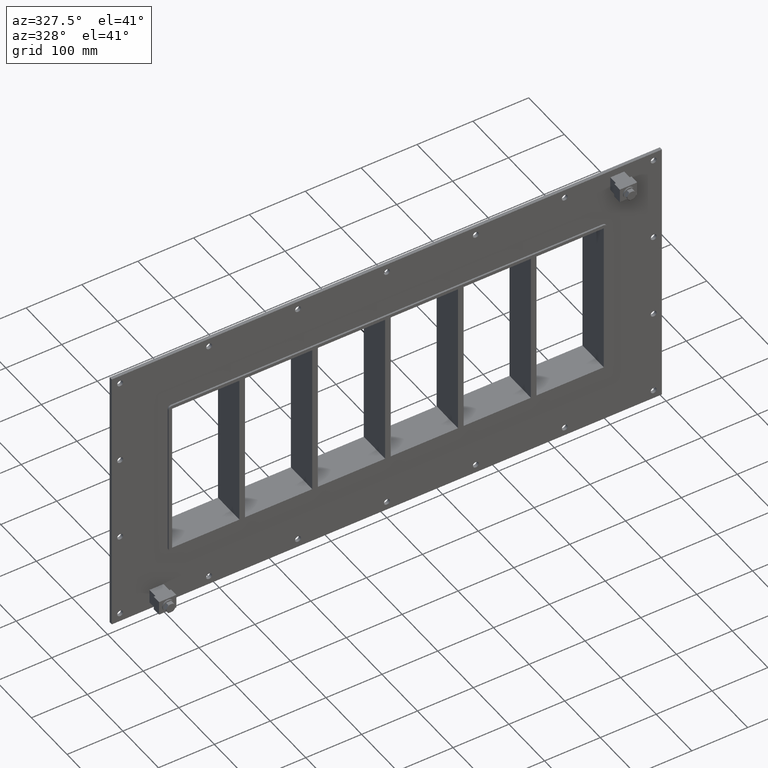
[diagram: clean part render]
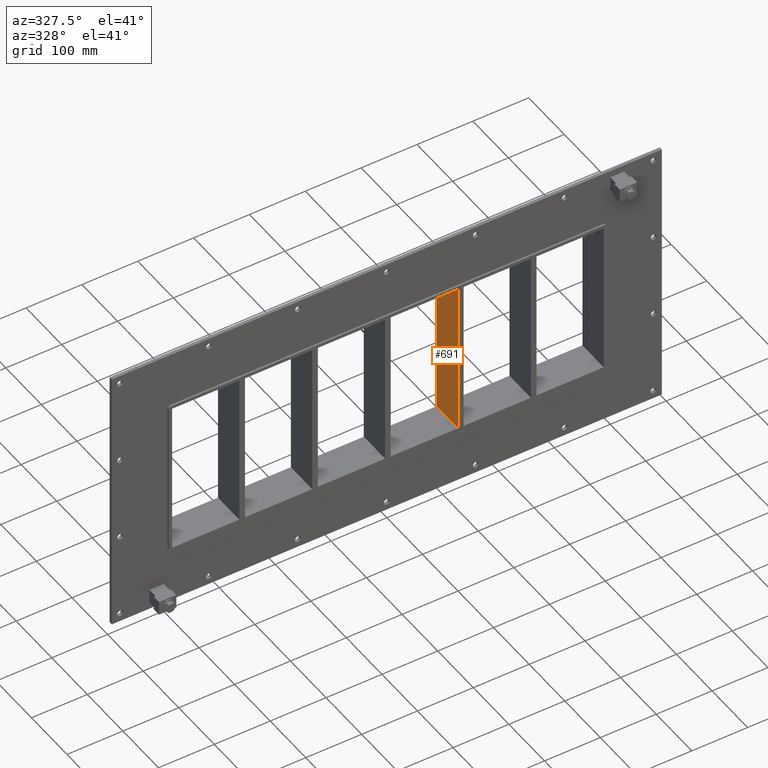
[diagram: same view with one face highlighted and labeled with its STEP entity id]
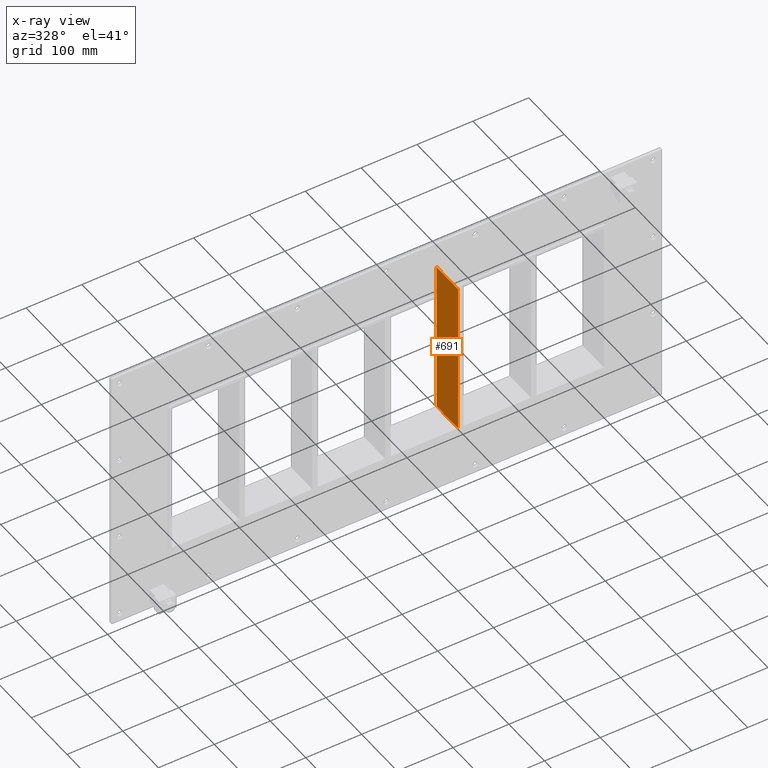
[diagram: x-ray of the same camera — body ghosted, the highlighted face saturated]
A machine part, auxiliary view. The second image highlights one B-rep face of the part: STEP entity #691.
The next image is the same camera in x-ray: the body ghosted, the highlighted face saturated — about 0% of this face is hidden behind the body in this view.
In plain terms, the highlighted planar face has unit normal (-1, 0, 0).
Its self-contained STEP definition (entity closure, byte-faithful):
#652=CARTESIAN_POINT('',(125.50000000000068,-3.0,-139.0));
#653=DIRECTION('',(-1.0,0.0,0.0));
#654=DIRECTION('',(0.0,0.0,1.0));
#655=AXIS2_PLACEMENT_3D('',#652,#653,#654);
#656=PLANE('',#655);
#657=CARTESIAN_POINT('',(125.50000000000068,-3.0,-139.0));
#658=VERTEX_POINT('',#657);
#659=CARTESIAN_POINT('',(125.50000000000065,-3.0,139.00000000000003));
#660=VERTEX_POINT('',#659);
#661=CARTESIAN_POINT('',(125.50000000000068,-3.0,-139.0));
#662=DIRECTION('',(0.0,0.0,1.0));
#663=VECTOR('',#662,278.0);
#664=LINE('',#661,#663);
#665=EDGE_CURVE('',#658,#660,#664,.T.);
#666=ORIENTED_EDGE('',*,*,#665,.T.);
#667=CARTESIAN_POINT('',(125.50000000000065,57.0,139.00000000000003));
#668=VERTEX_POINT('',#667);
#669=CARTESIAN_POINT('',(125.50000000000063,57.000000000000007,139.00000000000003));
#670=DIRECTION('',(0.0,-1.0,0.0));
#671=VECTOR('',#670,60.000000000000007);
#672=LINE('',#669,#671);
#673=EDGE_CURVE('',#668,#660,#672,.T.);
#674=ORIENTED_EDGE('',*,*,#673,.F.);
#675=CARTESIAN_POINT('',(125.50000000000068,57.0,-139.0));
#676=VERTEX_POINT('',#675);
#677=CARTESIAN_POINT('',(125.50000000000068,57.0,-139.0));
#678=DIRECTION('',(0.0,0.0,1.0));
#679=VECTOR('',#678,278.0);
#680=LINE('',#677,#679);
#681=EDGE_CURVE('',#676,#668,#680,.T.);
#682=ORIENTED_EDGE('',*,*,#681,.F.);
#683=CARTESIAN_POINT('',(125.50000000000068,-3.0,-139.0));
#684=DIRECTION('',(0.0,1.0,0.0));
#685=VECTOR('',#684,60.000000000000007);
#686=LINE('',#683,#685);
#687=EDGE_CURVE('',#658,#676,#686,.T.);
#688=ORIENTED_EDGE('',*,*,#687,.F.);
#689=EDGE_LOOP('',(#666,#674,#682,#688));
#690=FACE_OUTER_BOUND('',#689,.T.);
#691=ADVANCED_FACE('',(#690),#656,.T.);